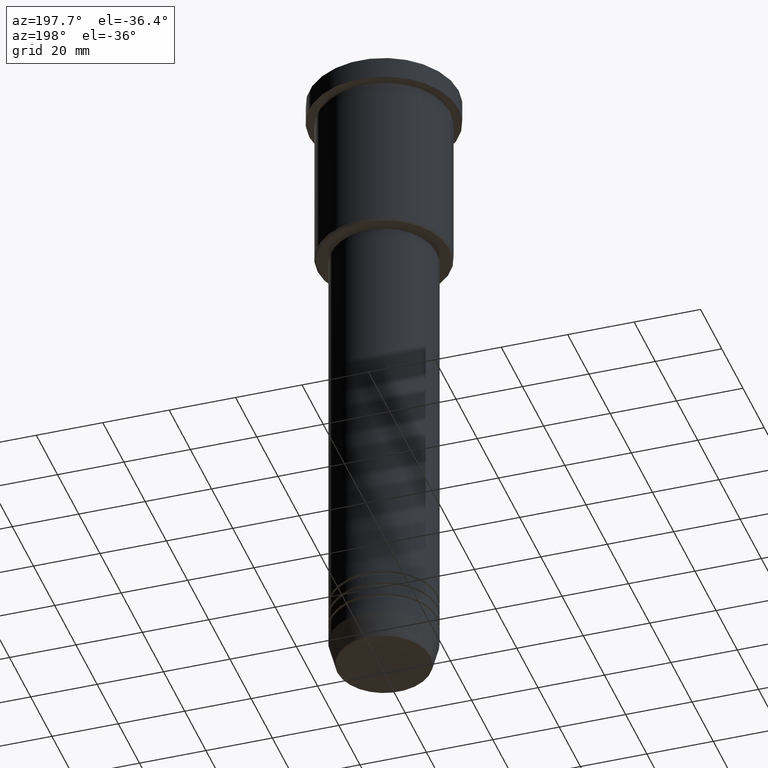
[diagram: clean part render]
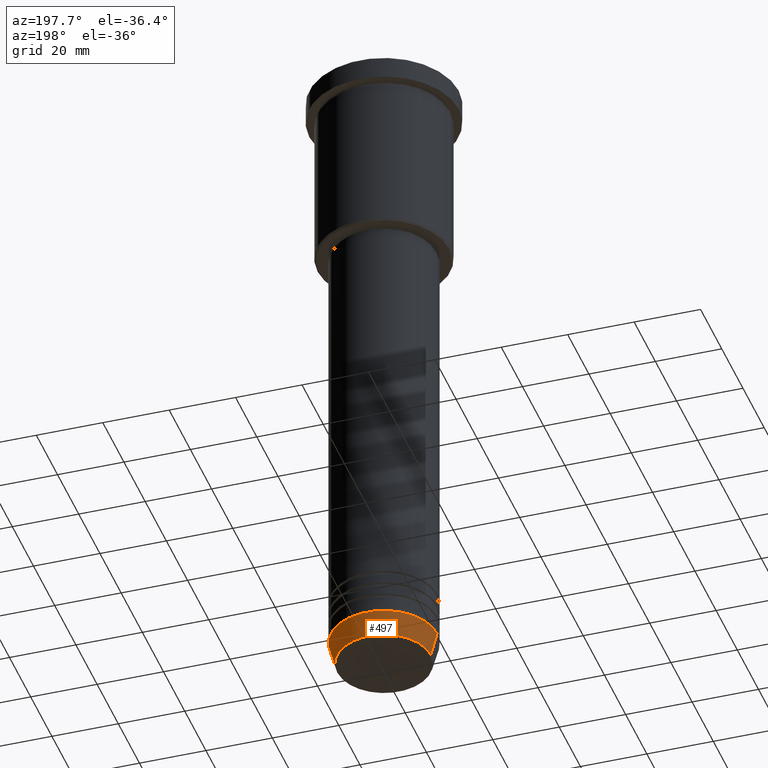
[diagram: same view with one face highlighted and labeled with its STEP entity id]
A machine part, auxiliary view. The second image highlights one B-rep face of the part: STEP entity #497.
In plain terms, the highlighted conical surface has half-angle 15 deg.
Its self-contained STEP definition (entity closure, byte-faithful):
#10 = EDGE_CURVE ( 'NONE', #926, #658, #240, .T. ) ;
#85 = DIRECTION ( 'NONE',  ( -0.000000000000000000, -0.000000000000000000, 1.000000000000000000 ) ) ;
#98 = CIRCLE ( 'NONE', #1116, 16.00000000000000000 ) ;
#110 = CARTESIAN_POINT ( 'NONE',  ( 0.000000000000000000, 0.000000000000000000, -199.6294095225512706 ) ) ;
#133 = ORIENTED_EDGE ( 'NONE', *, *, #205, .T. ) ;
#152 = VERTEX_POINT ( 'NONE', #330 ) ;
#175 = DIRECTION ( 'NONE',  ( -0.2588190451025213501, 3.169619151431772337E-17, 0.9659258262890680902 ) ) ;
#188 = AXIS2_PLACEMENT_3D ( 'NONE', #110, #386, #288 ) ;
#205 = EDGE_CURVE ( 'NONE', #926, #152, #232, .T. ) ;
#206 = EDGE_LOOP ( 'NONE', ( #133, #931, #557, #332 ) ) ;
#211 = AXIS2_PLACEMENT_3D ( 'NONE', #879, #424, #719 ) ;
#232 = CIRCLE ( 'NONE', #188, 14.08968047592163941 ) ;
#240 = LINE ( 'NONE', #252, #886 ) ;
#252 = CARTESIAN_POINT ( 'NONE',  ( 16.00000000000000000, 0.000000000000000000, -192.5000000000000284 ) ) ;
#288 = DIRECTION ( 'NONE',  ( 1.000000000000000000, 0.000000000000000000, 0.000000000000000000 ) ) ;
#310 = VERTEX_POINT ( 'NONE', #471 ) ;
#330 = CARTESIAN_POINT ( 'NONE',  ( -14.08968047592163941, 1.842461544110202058E-15, -199.6294095225512706 ) ) ;
#332 = ORIENTED_EDGE ( 'NONE', *, *, #10, .F. ) ;
#356 = CARTESIAN_POINT ( 'NONE',  ( 0.000000000000000000, 0.000000000000000000, -192.5000000000000284 ) ) ;
#370 = CARTESIAN_POINT ( 'NONE',  ( -16.00000000000000000, 1.959434878635765131E-15, -192.5000000000000284 ) ) ;
#386 = DIRECTION ( 'NONE',  ( -0.000000000000000000, -0.000000000000000000, 1.000000000000000000 ) ) ;
#424 = DIRECTION ( 'NONE',  ( -0.000000000000000000, -0.000000000000000000, 1.000000000000000000 ) ) ;
#425 = DIRECTION ( 'NONE',  ( 0.2588190451025213501, 0.000000000000000000, 0.9659258262890680902 ) ) ;
#441 = CARTESIAN_POINT ( 'NONE',  ( 14.08968047592163941, 0.000000000000000000, -199.6294095225512706 ) ) ;
#471 = CARTESIAN_POINT ( 'NONE',  ( -16.00000000000000000, 1.959434878635765131E-15, -192.5000000000000284 ) ) ;
#497 = ADVANCED_FACE ( 'NONE', ( #1156 ), #921, .T. ) ;
#557 = ORIENTED_EDGE ( 'NONE', *, *, #1105, .F. ) ;
#658 = VERTEX_POINT ( 'NONE', #1106 ) ;
#719 = DIRECTION ( 'NONE',  ( 1.000000000000000000, 0.000000000000000000, 0.000000000000000000 ) ) ;
#813 = DIRECTION ( 'NONE',  ( 1.000000000000000000, 0.000000000000000000, 0.000000000000000000 ) ) ;
#879 = CARTESIAN_POINT ( 'NONE',  ( 0.000000000000000000, 0.000000000000000000, -192.5000000000000284 ) ) ;
#886 = VECTOR ( 'NONE', #425, 1000.000000000000000 ) ;
#921 = CONICAL_SURFACE ( 'NONE', #211, 16.00000000000000000, 0.2617993877991500740 ) ;
#926 = VERTEX_POINT ( 'NONE', #441 ) ;
#931 = ORIENTED_EDGE ( 'NONE', *, *, #1042, .T. ) ;
#1042 = EDGE_CURVE ( 'NONE', #152, #310, #1109, .T. ) ;
#1105 = EDGE_CURVE ( 'NONE', #658, #310, #98, .T. ) ;
#1106 = CARTESIAN_POINT ( 'NONE',  ( 16.00000000000000000, 0.000000000000000000, -192.5000000000000284 ) ) ;
#1109 = LINE ( 'NONE', #370, #1169 ) ;
#1116 = AXIS2_PLACEMENT_3D ( 'NONE', #356, #85, #813 ) ;
#1156 = FACE_OUTER_BOUND ( 'NONE', #206, .T. ) ;
#1169 = VECTOR ( 'NONE', #175, 1000.000000000000000 ) ;